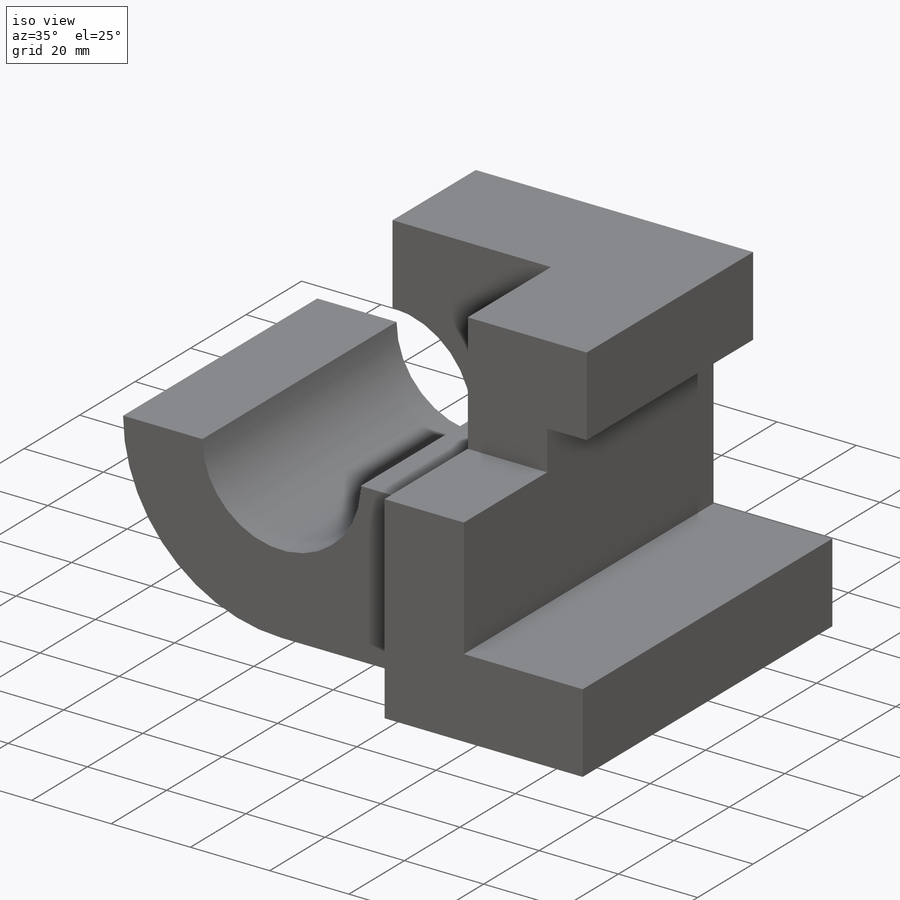
[diagram: iso view]
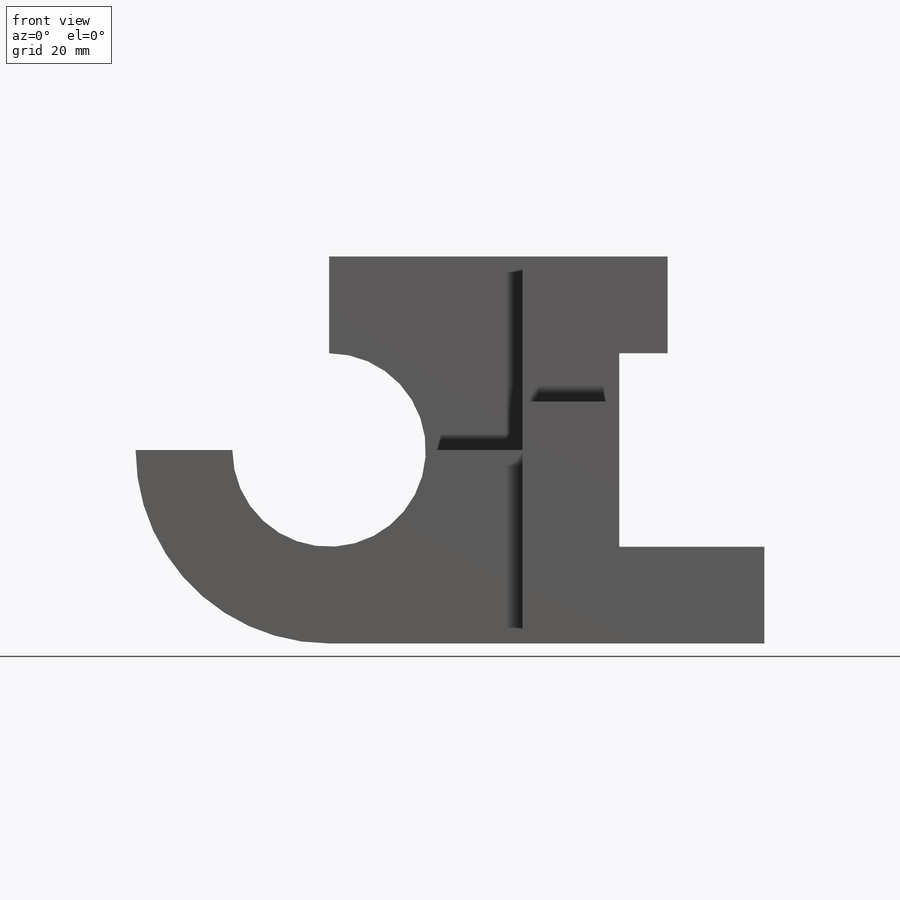
[diagram: front view]
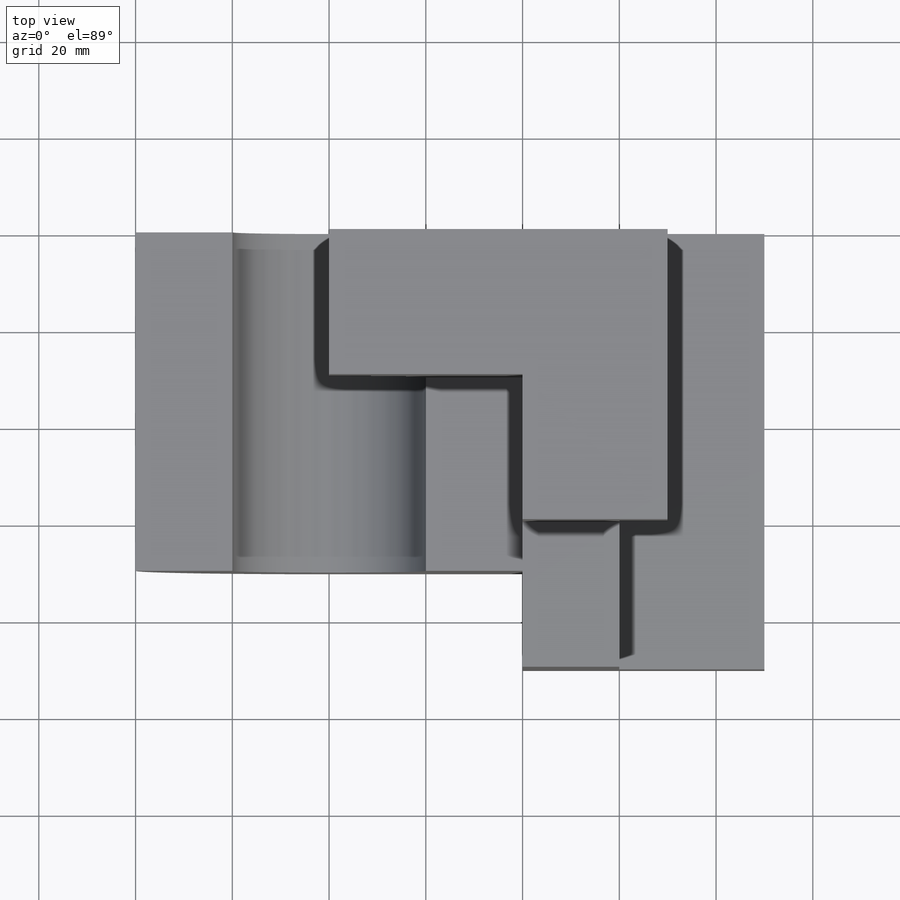
[diagram: top view]
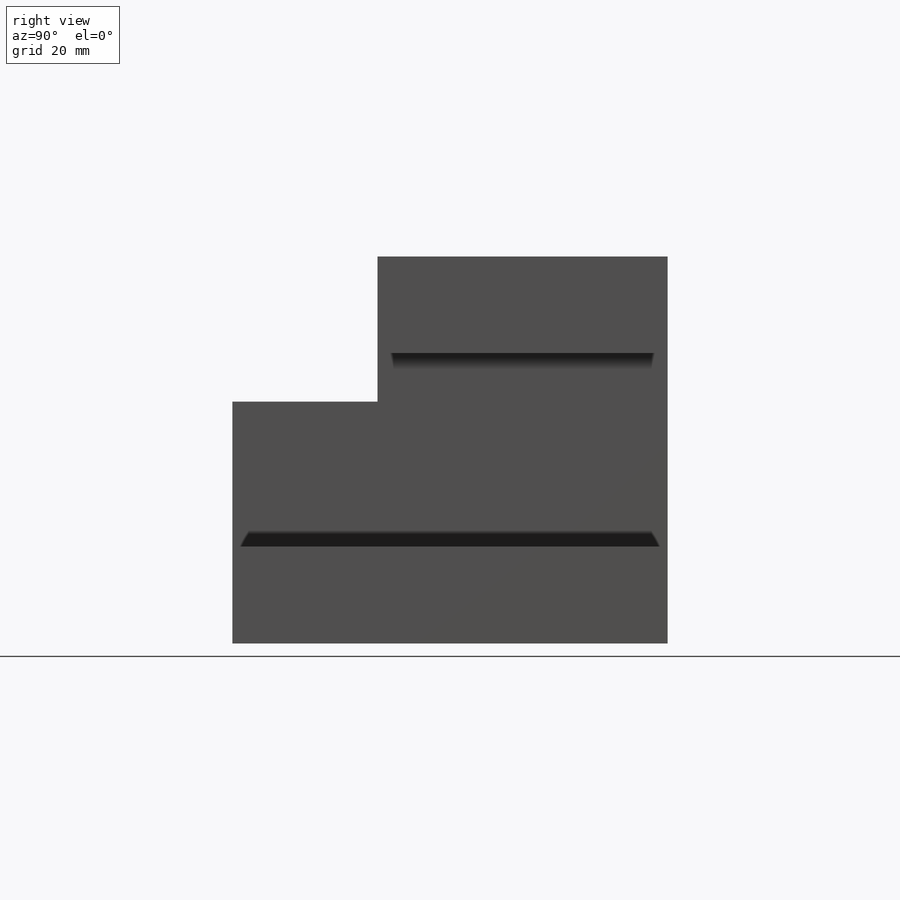
[diagram: right view]
SOLIDWORKS PART (.sldprt)
format: sldprt  version: not decoded by parser v0  size: 445,440 bytes
history: native  units: mm
features: sketch x23, cut_extrude x14, extrude x9, plane x3, material x1 (+13 scaffold rows collapsed)
feature tree (63):
  scaffold x13  (default folders/planes/origin — collapsed)
  material  "Material <not specified>"
  sketch  "Sketch1"  dims[D1=40.0mm D2=20.0mm D3=70.0mm D4=80.0mm]
  extrude  "Boss-Extrude1"  Depth=90mm
  sketch  "Sketch2"  dims[D1=30.0mm D2=20.0mm D3=40.0mm]
  cut_extrude  "Cut-Extrude1"  Depth=90mm
  sketch  "Sketch3"  dims[D1=20.0mm]
  cut_extrude  "Cut-Extrude2"  Depth=90mm
  plane  "Plane1"  Offset=40mm
  sketch  "Sketch4"  dims[D1=0.0mm D2=20.0mm D3=0.0mm D4=80.0mm]
  cut_extrude  "Cut-Extrude3"  Depth=90mm
  sketch  "Sketch5"  dims[D1=30.0mm D2=30.0mm D3=0.0mm D4=0.0mm]
  cut_extrude  "Cut-Extrude4"  Depth=90mm
  sketch  "Sketch7"  dims[D1=20.0mm D2=40.0mm]
  cut_extrude  "Cut-Extrude6"  Depth=40mm
  plane  "Plane2"  Offset=70mm
  sketch  "Sketch10"  dims[D1=30.0mm D2=20.0mm D3=10.0mm]
  extrude  "Boss-Extrude6"  Depth=30mm
  sketch  "Sketch11"
  cut_extrude  "Cut-Extrude7"  Depth=20mm
  sketch  "Sketch12"  dims[D1=30.0mm D2=10.0mm]
  cut_extrude  "Cut-Extrude8"  Depth=20mm
  sketch  "Sketch13"  dims[D1=20.0mm]
  cut_extrude  "Cut-Extrude9"  Depth=20mm
  sketch  "Sketch14"
  extrude  "Boss-Extrude7"  Depth=10mm
  plane  "Plane3"  Offset=40mm
  sketch  "Sketch16"  dims[D1=20.0mm D2=0.0mm]
  extrude  "Boss-Extrude8"  Depth=30mm
  sketch  "Sketch17"  dims[D1=30.0mm]
  cut_extrude  "Cut-Extrude10"  Depth=20mm
  sketch  "Sketch18"
  extrude  "Boss-Extrude9"  Depth=10mm
  sketch  "Sketch19"
  extrude  "Boss-Extrude10"  Depth=20mm
  sketch  "Sketch21"  dims[D1=10.0001mm]
  extrude  "Boss-Extrude13"  Depth=30mm
  sketch  "Sketch22"  dims[D1=30.0mm]
  cut_extrude  "Cut-Extrude13"  Depth=29.999mm
  sketch  "Sketch23"
  cut_extrude  "Cut-Extrude14"  Depth=1mm
  sketch  "Sketch24"
  cut_extrude  "Cut-Extrude15"  Depth=1mm
  sketch  "Sketch25"
  cut_extrude  "Cut-Extrude16"  Depth=10mm
  sketch  "Sketch27"  dims[D1=10.0mm D2=10.0mm]
  cut_extrude  "Cut-Extrude18"  Depth=30mm
  sketch  "Sketch30"
  extrude  "Boss-Extrude16"  Depth=30mm
  sketch  "Sketch31"
  extrude  "Boss-Extrude17"  Depth=10mm
decode coverage: 37 of 46 modeling features carry decoded parameters
note: suppression state not decoded; provenance and decode notes live in map.json
